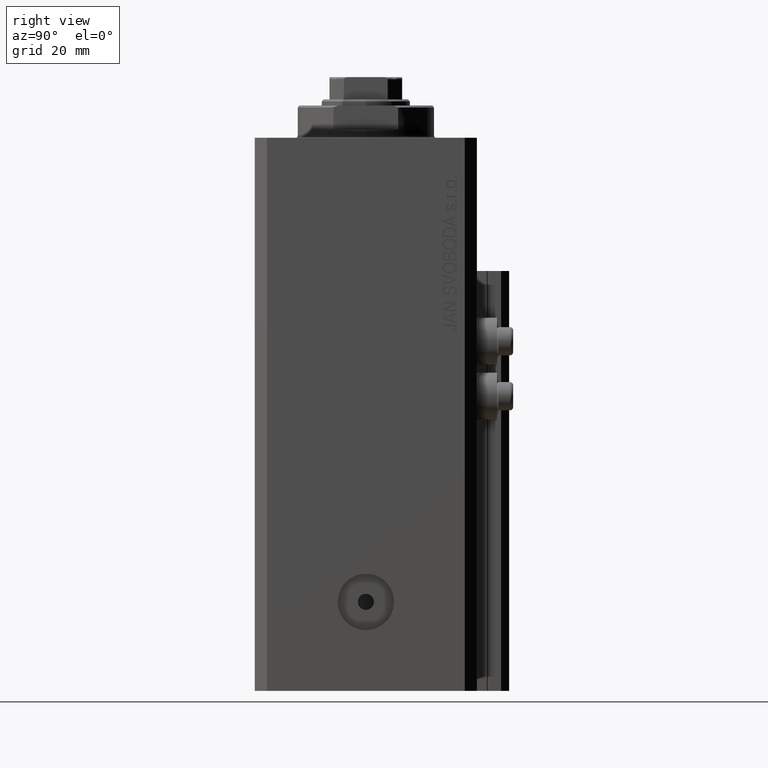
[diagram: clean part render]
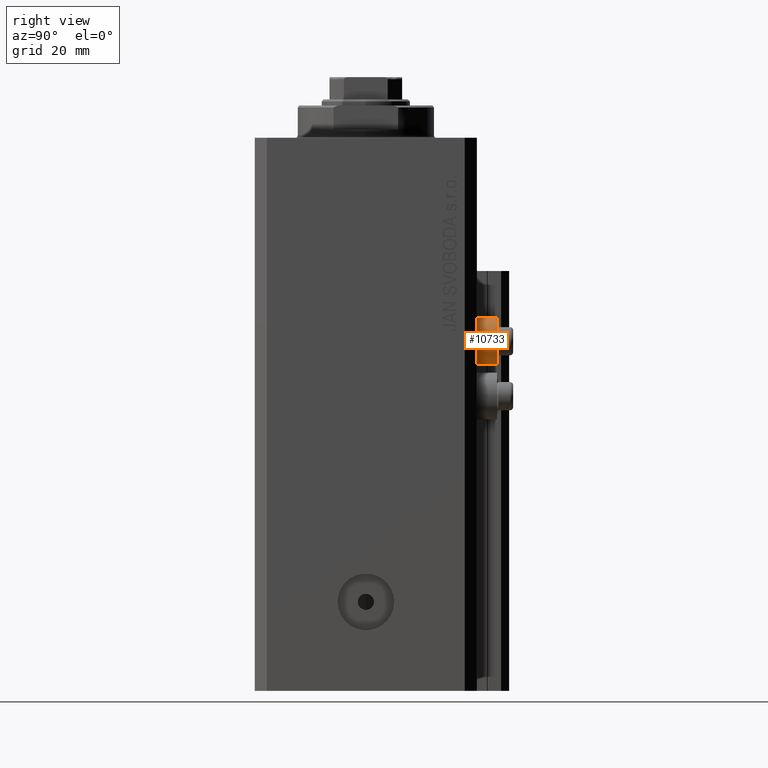
[diagram: same view with one face highlighted and labeled with its STEP entity id]
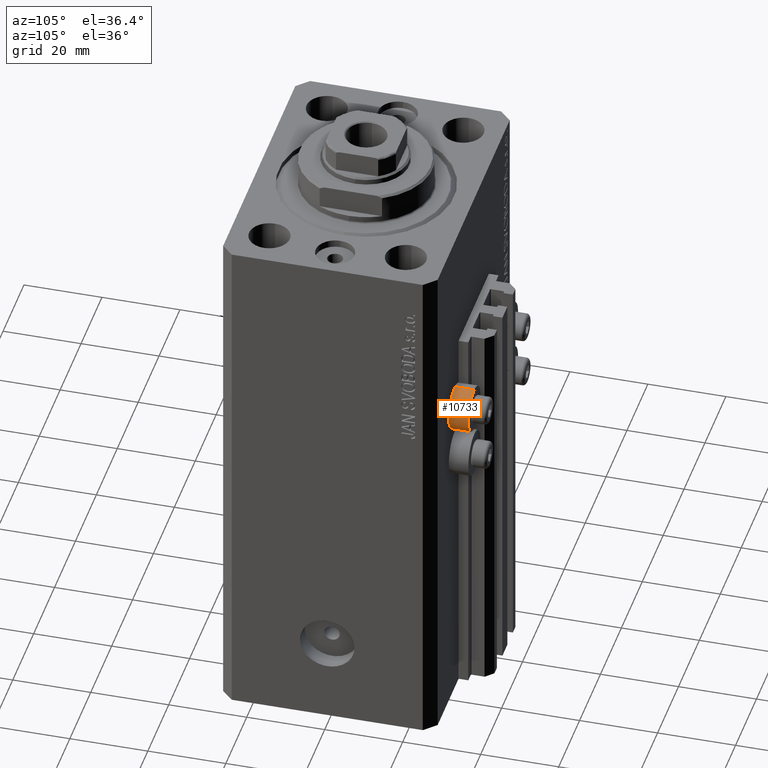
[diagram: same view with one face highlighted and labeled with its STEP entity id]
A machine part, right view. The second image highlights one B-rep face of the part: STEP entity #10733.
A second angle (auxiliary view) of the same face is appended — the face is thin or edge-on in the first view.
In plain terms, the highlighted cylindrical surface (edge-blend (fillet) strip) has radius 5.8 mm, axis along (0, 1, 0).
Its self-contained STEP definition (entity closure, byte-faithful):
#872 = CIRCLE ( 'NONE', #18438, 5.799999999999999822 ) ;
#1010 = DIRECTION ( 'NONE',  ( 0.000000000000000000, 1.000000000000000000, 0.000000000000000000 ) ) ;
#1143 = DIRECTION ( 'NONE',  ( -0.000000000000000000, -1.000000000000000000, -0.000000000000000000 ) ) ;
#1828 = CARTESIAN_POINT ( 'NONE',  ( 18.00000000000000355, 32.49999999996100541, -44.60000000000000142 ) ) ;
#1953 = DIRECTION ( 'NONE',  ( 0.000000000000000000, 0.000000000000000000, 1.000000000000000000 ) ) ;
#3363 = DIRECTION ( 'NONE',  ( 0.000000000000000000, 0.000000000000000000, 1.000000000000000000 ) ) ;
#4707 = CIRCLE ( 'NONE', #39020, 5.799999999999999822 ) ;
#5530 = EDGE_CURVE ( 'NONE', #9449, #21377, #41611, .T. ) ;
#7112 = CARTESIAN_POINT ( 'NONE',  ( 18.00000000000000355, 32.49999999996100541, -56.20000000000000284 ) ) ;
#9449 = VERTEX_POINT ( 'NONE', #13714 ) ;
#10037 = EDGE_CURVE ( 'NONE', #27598, #21309, #10519, .T. ) ;
#10519 = LINE ( 'NONE', #33193, #21965 ) ;
#10733 = ADVANCED_FACE ( 'NONE', ( #33941 ), #33710, .T. ) ;
#13714 = CARTESIAN_POINT ( 'NONE',  ( 18.00000000000000355, 27.50000000000000000, -44.60000000000000142 ) ) ;
#13803 = ORIENTED_EDGE ( 'NONE', *, *, #37939, .T. ) ;
#15095 = ORIENTED_EDGE ( 'NONE', *, *, #5530, .F. ) ;
#15935 = DIRECTION ( 'NONE',  ( 0.000000000000000000, 0.000000000000000000, 1.000000000000000000 ) ) ;
#16515 = CARTESIAN_POINT ( 'NONE',  ( 18.00000000000000355, 32.49999999996100541, -50.39999999999999858 ) ) ;
#17926 = CARTESIAN_POINT ( 'NONE',  ( 18.00000000000000355, 32.49999999996100541, -50.39999999999999858 ) ) ;
#18438 = AXIS2_PLACEMENT_3D ( 'NONE', #17926, #46811, #3363 ) ;
#21309 = VERTEX_POINT ( 'NONE', #7112 ) ;
#21377 = VERTEX_POINT ( 'NONE', #1828 ) ;
#21965 = VECTOR ( 'NONE', #43929, 1000.000000000000000 ) ;
#23499 = AXIS2_PLACEMENT_3D ( 'NONE', #16515, #1010, #1953 ) ;
#26207 = CARTESIAN_POINT ( 'NONE',  ( 18.00000000000000355, 27.50000000000000000, -56.20000000000000284 ) ) ;
#27518 = CARTESIAN_POINT ( 'NONE',  ( 18.00000000000000355, 32.49999999996100541, -44.60000000000000142 ) ) ;
#27598 = VERTEX_POINT ( 'NONE', #26207 ) ;
#28476 = ORIENTED_EDGE ( 'NONE', *, *, #10037, .T. ) ;
#30221 = VECTOR ( 'NONE', #31098, 1000.000000000000000 ) ;
#31098 = DIRECTION ( 'NONE',  ( 0.000000000000000000, 1.000000000000000000, 0.000000000000000000 ) ) ;
#33193 = CARTESIAN_POINT ( 'NONE',  ( 18.00000000000000355, 32.49999999996100541, -56.20000000000000284 ) ) ;
#33710 = CYLINDRICAL_SURFACE ( 'NONE', #23499, 5.799999999999999822 ) ;
#33941 = FACE_OUTER_BOUND ( 'NONE', #41730, .T. ) ;
#35962 = ORIENTED_EDGE ( 'NONE', *, *, #42739, .F. ) ;
#37939 = EDGE_CURVE ( 'NONE', #21309, #21377, #872, .T. ) ;
#39020 = AXIS2_PLACEMENT_3D ( 'NONE', #41234, #1143, #15935 ) ;
#41234 = CARTESIAN_POINT ( 'NONE',  ( 18.00000000000000355, 27.50000000000000000, -50.39999999999999858 ) ) ;
#41611 = LINE ( 'NONE', #27518, #30221 ) ;
#41730 = EDGE_LOOP ( 'NONE', ( #35962, #28476, #13803, #15095 ) ) ;
#42739 = EDGE_CURVE ( 'NONE', #27598, #9449, #4707, .T. ) ;
#43929 = DIRECTION ( 'NONE',  ( 0.000000000000000000, 1.000000000000000000, 0.000000000000000000 ) ) ;
#46811 = DIRECTION ( 'NONE',  ( -0.000000000000000000, -1.000000000000000000, -0.000000000000000000 ) ) ;